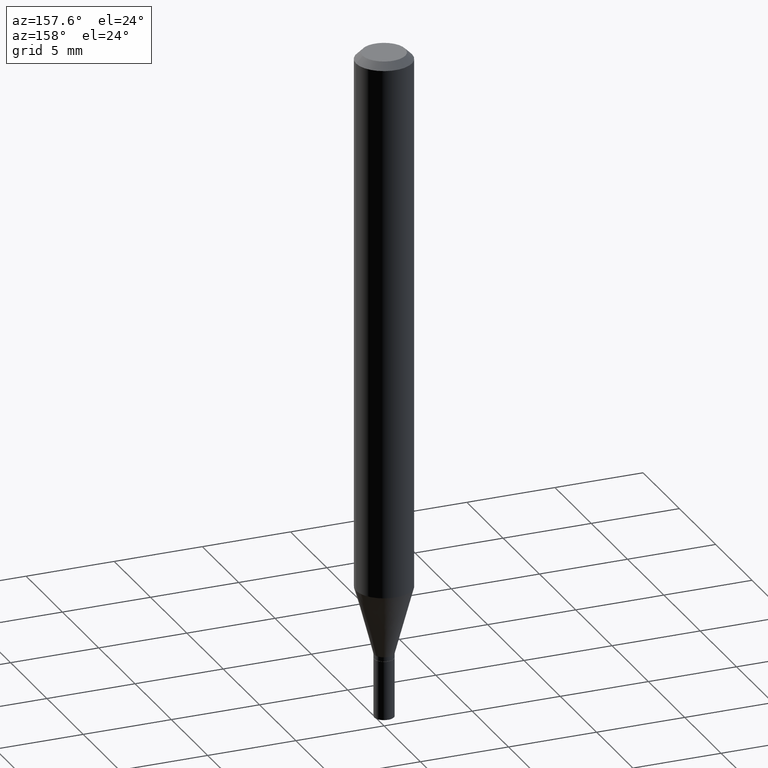
[diagram: clean part render]
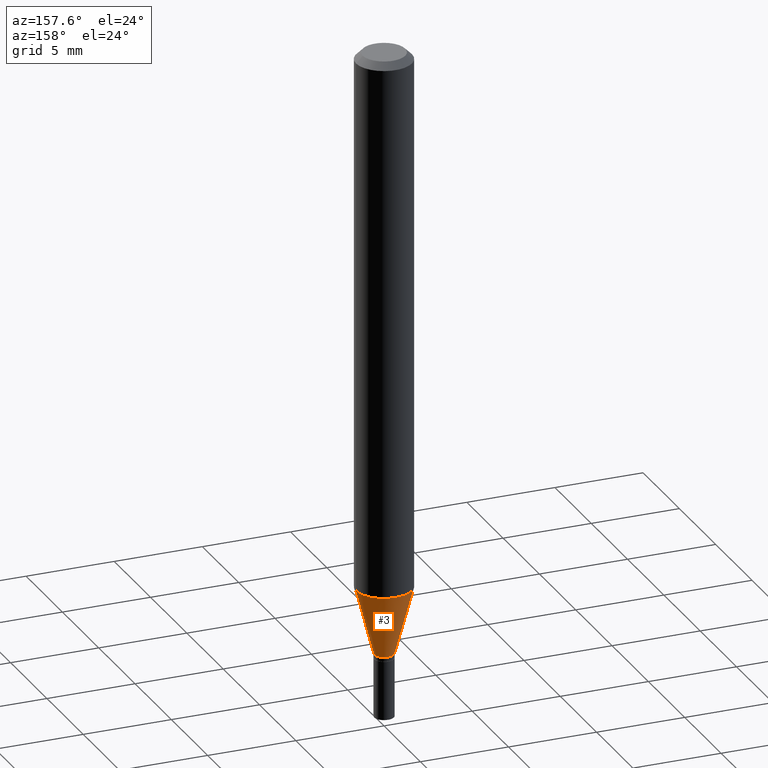
[diagram: same view with one face highlighted and labeled with its STEP entity id]
A machine part, auxiliary view. The second image highlights one B-rep face of the part: STEP entity #3.
In plain terms, the highlighted conical surface has half-angle 15 deg.
Its self-contained STEP definition (entity closure, byte-faithful):
#3 = ADVANCED_FACE ( 'NONE', ( #244 ), #369, .T. ) ;
#32 = CARTESIAN_POINT ( 'NONE',  ( 3.320946638799415978E-29, -4.741431658148991442E-15, -1.358000000000000096 ) ) ;
#48 = AXIS2_PLACEMENT_3D ( 'NONE', #32, #210, #350 ) ;
#60 = LINE ( 'NONE', #347, #236 ) ;
#62 = CARTESIAN_POINT ( 'NONE',  ( -0.06250000000000000000, -3.769611825414159666E-15, -1.206851942293460711 ) ) ;
#63 = CARTESIAN_POINT ( 'NONE',  ( -0.02199999999999992240, -4.585112256281770051E-15, -1.358000000000000096 ) ) ;
#82 = CARTESIAN_POINT ( 'NONE',  ( 0.02199999999999992240, -4.895056837058089278E-15, -1.358000000000000096 ) ) ;
#102 = DIRECTION ( 'NONE',  ( -0.2588190451025213501, 5.211531920934551042E-15, 0.9659258262890682012 ) ) ;
#109 = CARTESIAN_POINT ( 'NONE',  ( 3.320946638799415978E-29, -4.741431658148991442E-15, -1.358000000000000096 ) ) ;
#110 = ORIENTED_EDGE ( 'NONE', *, *, #336, .F. ) ;
#121 = ORIENTED_EDGE ( 'NONE', *, *, #150, .T. ) ;
#135 = VERTEX_POINT ( 'NONE', #288 ) ;
#150 = EDGE_CURVE ( 'NONE', #428, #135, #464, .T. ) ;
#159 = ORIENTED_EDGE ( 'NONE', *, *, #218, .T. ) ;
#160 = DIRECTION ( 'NONE',  ( 1.000000000000000000, -6.982962677686269866E-15, 0.000000000000000000 ) ) ;
#185 = CIRCLE ( 'NONE', #363, 0.06250000000000000000 ) ;
#210 = DIRECTION ( 'NONE',  ( -2.445468806185136597E-29, 3.491481338843145583E-15, 1.000000000000000000 ) ) ;
#218 = EDGE_CURVE ( 'NONE', #135, #386, #280, .T. ) ;
#227 = EDGE_CURVE ( 'NONE', #230, #386, #185, .T. ) ;
#230 = VERTEX_POINT ( 'NONE', #331 ) ;
#236 = VECTOR ( 'NONE', #341, 39.37007874015747433 ) ;
#244 = FACE_OUTER_BOUND ( 'NONE', #406, .T. ) ;
#259 = DIRECTION ( 'NONE',  ( 1.000000000000000000, -6.982962677686270655E-15, 0.000000000000000000 ) ) ;
#261 = ORIENTED_EDGE ( 'NONE', *, *, #227, .F. ) ;
#280 = LINE ( 'NONE', #63, #358 ) ;
#288 = CARTESIAN_POINT ( 'NONE',  ( -0.02199999999999992240, -4.177362040847964858E-15, -1.358000000000000096 ) ) ;
#289 = AXIS2_PLACEMENT_3D ( 'NONE', #109, #378, #160 ) ;
#331 = CARTESIAN_POINT ( 'NONE',  ( 0.06250000000000000000, -4.650136202619614741E-15, -1.206851942293460711 ) ) ;
#336 = EDGE_CURVE ( 'NONE', #428, #230, #60, .T. ) ;
#341 = DIRECTION ( 'NONE',  ( 0.2588190451025213501, 1.565188264969621968E-15, 0.9659258262890682012 ) ) ;
#347 = CARTESIAN_POINT ( 'NONE',  ( 0.02199999999999992240, -4.895056837058089278E-15, -1.358000000000000096 ) ) ;
#350 = DIRECTION ( 'NONE',  ( 1.000000000000000000, -6.982962677686269866E-15, 0.000000000000000000 ) ) ;
#358 = VECTOR ( 'NONE', #102, 39.37007874015747433 ) ;
#363 = AXIS2_PLACEMENT_3D ( 'NONE', #384, #392, #259 ) ;
#369 = CONICAL_SURFACE ( 'NONE', #48, 0.02199999999999992240, 0.2617993877991500740 ) ;
#378 = DIRECTION ( 'NONE',  ( -2.445468806185136597E-29, 3.491481338843145583E-15, 1.000000000000000000 ) ) ;
#384 = CARTESIAN_POINT ( 'NONE',  ( 2.951318778562602676E-29, -4.213701035264222282E-15, -1.206851942293460711 ) ) ;
#386 = VERTEX_POINT ( 'NONE', #62 ) ;
#392 = DIRECTION ( 'NONE',  ( -2.445468806185136597E-29, 3.491481338843145583E-15, 1.000000000000000000 ) ) ;
#406 = EDGE_LOOP ( 'NONE', ( #121, #159, #261, #110 ) ) ;
#428 = VERTEX_POINT ( 'NONE', #82 ) ;
#464 = CIRCLE ( 'NONE', #289, 0.02199999999999992240 ) ;